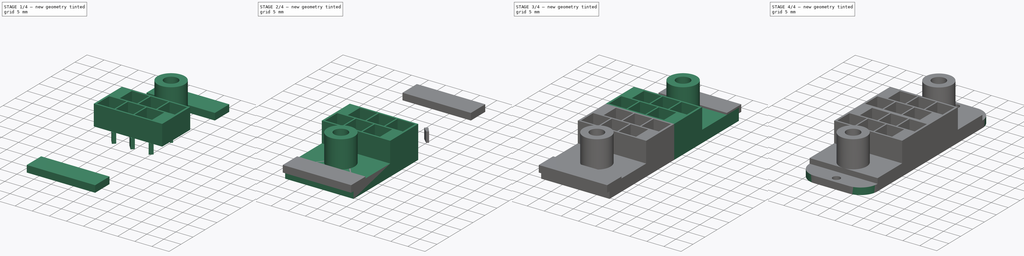
[diagram: build sequence overview — one tinted view per stage of 4, left to right]
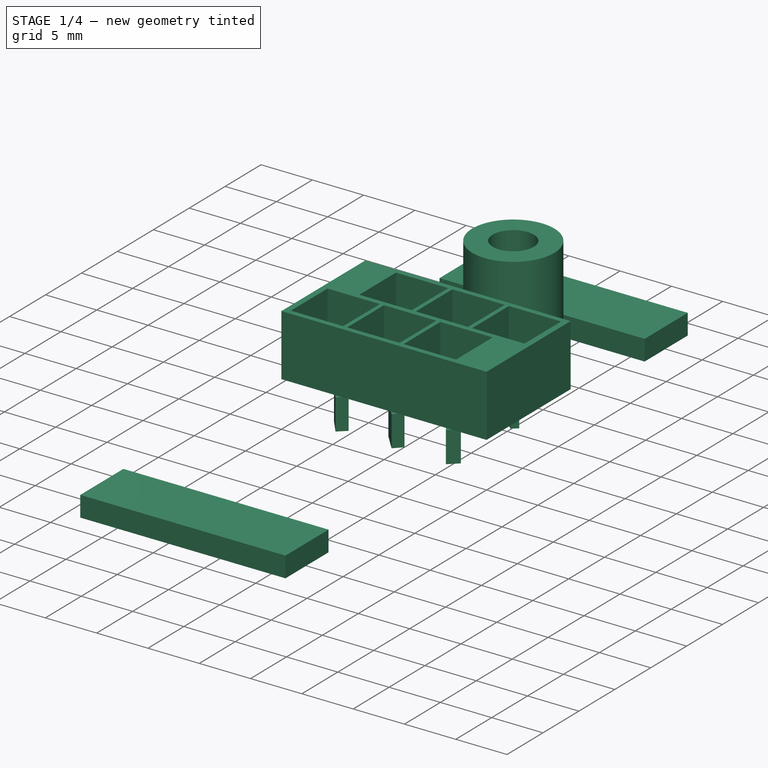
[diagram: stage 1 of 4 — iso view after this stage's code; geometry added in this stage tinted green]
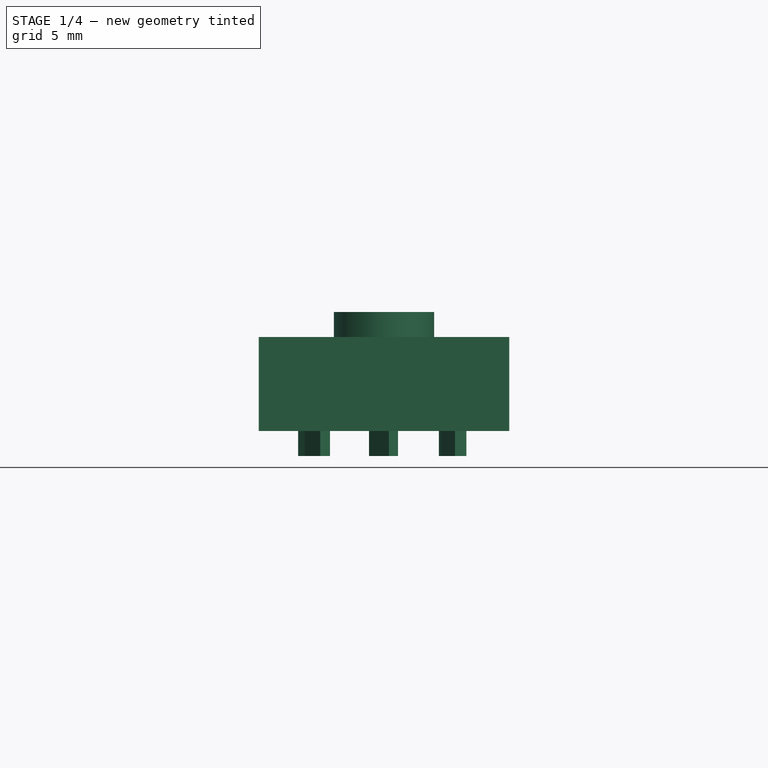
[diagram: stage 1 of 4 — front view after this stage's code; geometry added in this stage tinted green]
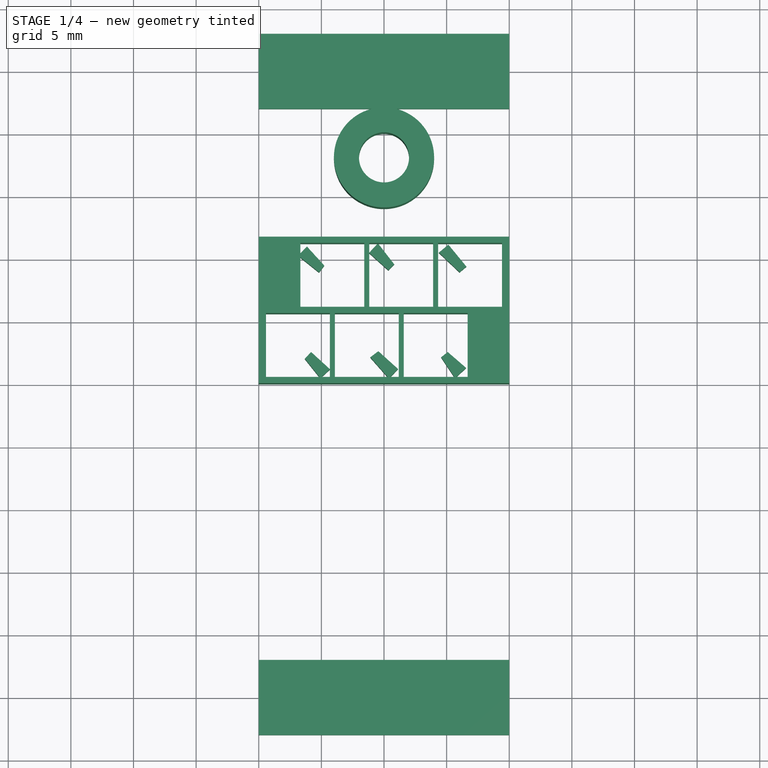
[diagram: stage 1 of 4 — top view after this stage's code; geometry added in this stage tinted green]
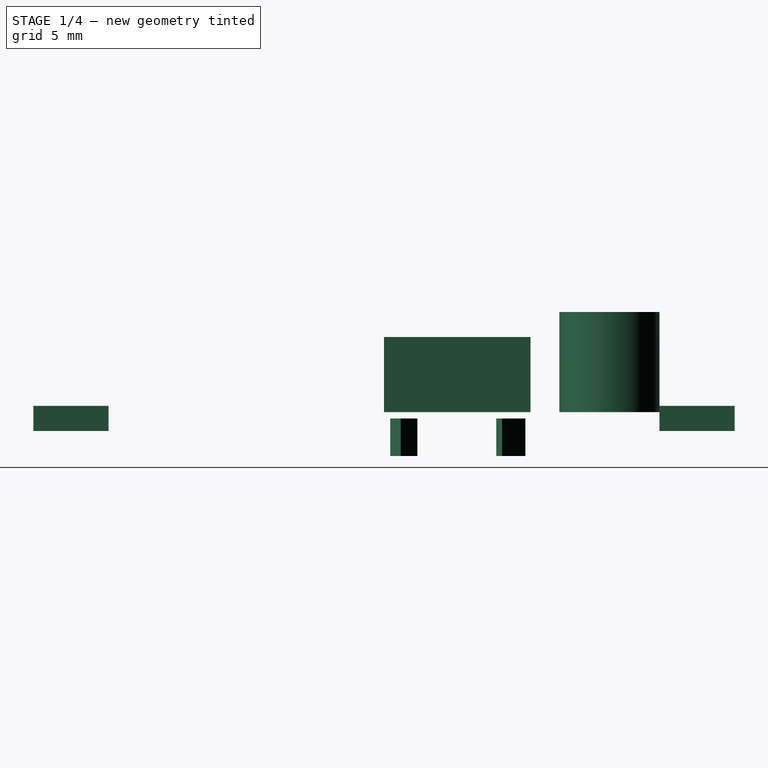
[diagram: stage 1 of 4 — right view after this stage's code; geometry added in this stage tinted green]
FCSTD DOCUMENT  (FreeCAD 0.16R6706 (Git))
Label: MotorHolder_1.2
License: All rights reserved
LicenseURL: http://en.wikipedia.org/wiki/All_rights_reserved
objects: Sketcher::SketchObject×9, PartDesign::Pad×9, Part::MultiFuse×3, PartDesign::Fillet×1, Part::Cut×1
note: 32 computed .brp shape members not serialized (recipe doc carries the construction recipe); baked Part::Feature solids carry a one-line shape summary decoded from their .brp

FEATURE [PartDesign::Pad] Pad010
  Length = 6
  Length2 = 100
  Placement = pos=(0,0,3.5) rot=(0,0,1;0rad)
  Sketch = -> Sketch010
  Type = 0
FEATURE [Sketcher::SketchObject] Sketch011
  Placement = pos=(0,0,3.5) rot=(0,0,1;0rad)
  sketch-geometry (2):
    g0: Circle CenterX=10 CenterY=18 CenterZ=0 NormalX=0 NormalY=0 NormalZ=1 Radius=2
    g1: Circle CenterX=10 CenterY=18 CenterZ=0 NormalX=0 NormalY=0 NormalZ=1 Radius=4
  constraints (5):
    c: Radius(g0) = 2
    c: Coincident(g1,g0)
    c: Radius(g1) = 4
    c: DistanceX(g-1,g0) = 10
    c: DistanceY(g-1,g0) = 18
FEATURE [PartDesign::Pad] Pad011
  Length = 8
  Length2 = 100
  Placement = pos=(0,0,3.5) rot=(0,0,1;0rad)
  Sketch = -> Sketch011
  Type = 0
FEATURE [Sketcher::SketchObject] Sketch012
  sketch-geometry (24):
    g0: LineSegment StartX=3.14451 StartY=10.2964 StartZ=0 EndX=4.81223 EndY=8.96219 EndZ=0
    g1: LineSegment StartX=4.81223 StartY=8.96219 StartZ=0 EndX=5.22976 EndY=9.5068 EndZ=0
    g2: LineSegment StartX=5.22976 StartY=9.5068 StartZ=0 EndX=3.84864 EndY=11.0276 EndZ=0
    g3: LineSegment StartX=3.84864 StartY=11.0276 StartZ=0 EndX=3.14451 EndY=10.2964 EndZ=0
    g4: LineSegment StartX=8.80602 StartY=10.5234 StartZ=0 EndX=10.3483 EndY=9.13186 EndZ=0
    g5: LineSegment StartX=10.3483 StartY=9.13186 StartZ=0 EndX=10.8168 EndY=9.6104 EndZ=0
    g6: LineSegment StartX=10.8168 StartY=9.6104 StartZ=0 EndX=9.51401 EndY=11.2859 EndZ=0
    g7: LineSegment StartX=9.51401 StartY=11.2859 StartZ=0 EndX=8.80602 EndY=10.5234 EndZ=0
    g8: LineSegment StartX=14.3792 StartY=10.5416 StartZ=0 EndX=16.0312 EndY=8.98035 EndZ=0
    g9: LineSegment StartX=16.0312 StartY=8.98035 StartZ=0 EndX=16.5758 EndY=9.43419 EndZ=0
    g10: LineSegment StartX=16.5758 StartY=9.43419 StartZ=0 EndX=15.1416 EndY=11.1769 EndZ=0
    g11: LineSegment StartX=15.1416 StartY=11.1769 StartZ=0 EndX=14.3792 EndY=10.5416 EndZ=0
    g12: LineSegment StartX=3.6714 StartY=2.07084 StartZ=0 EndX=4.91308 EndY=0.518744 EndZ=0
    g13: LineSegment StartX=4.91308 StartY=0.518744 StartZ=0 EndX=5.68913 EndY=1.22828 EndZ=0
    g14: LineSegment StartX=5.68913 StartY=1.22828 StartZ=0 EndX=4.18138 EndY=2.60299 EndZ=0
    g15: LineSegment StartX=4.18138 StartY=2.60299 StartZ=0 EndX=3.6714 EndY=2.07084 EndZ=0
    g16: LineSegment StartX=8.9042 StartY=2.18171 StartZ=0 EndX=10.3898 EndY=0.496571 EndZ=0
    g17: LineSegment StartX=10.3898 StartY=0.496571 StartZ=0 EndX=11.1215 EndY=1.25045 EndZ=0
    g18: LineSegment StartX=11.1215 StartY=1.25045 StartZ=0 EndX=9.54721 EndY=2.66951 EndZ=0
    g19: LineSegment StartX=9.54721 StartY=2.66951 StartZ=0 EndX=8.9042 EndY=2.18171 EndZ=0
    g20: LineSegment StartX=14.5583 StartY=2.18171 StartZ=0 EndX=15.6669 EndY=0.518744 EndZ=0
    g21: LineSegment StartX=15.6669 StartY=0.518744 StartZ=0 EndX=16.5538 EndY=1.33914 EndZ=0
    g22: LineSegment StartX=16.5538 StartY=1.33914 StartZ=0 EndX=15.0904 EndY=2.60299 EndZ=0
    g23: LineSegment StartX=15.0904 StartY=2.60299 StartZ=0 EndX=14.5583 EndY=2.18171 EndZ=0
  constraints (24):
    c: Coincident(g0,g1)
    c: Coincident(g1,g2)
    c: Coincident(g2,g3)
    c: Coincident(g3,g0)
    c: Coincident(g4,g5)
    c: Coincident(g5,g6)
    c: Coincident(g6,g7)
    c: Coincident(g7,g4)
    c: Coincident(g8,g9)
    c: Coincident(g9,g10)
    c: Coincident(g10,g11)
    c: Coincident(g11,g8)
    c: Coincident(g12,g13)
    c: Coincident(g13,g14)
    c: Coincident(g14,g15)
    c: Coincident(g15,g12)
    c: Coincident(g16,g17)
    c: Coincident(g17,g18)
    c: Coincident(g18,g19)
    c: Coincident(g19,g16)
    c: Coincident(g20,g21)
    c: Coincident(g21,g22)
    c: Coincident(g22,g23)
    c: Coincident(g23,g20)
FEATURE [PartDesign::Pad] Pad012
  Length = 3
  Length2 = 100
  Sketch = -> Sketch012
  Type = 0
FEATURE [Sketcher::SketchObject] Sketch013
  Placement = pos=(0,0,2) rot=(0,0,1;0rad)
  sketch-geometry (8):
    g0: LineSegment StartX=0 StartY=28 StartZ=0 EndX=20 EndY=28 EndZ=0
    g1: LineSegment StartX=20 StartY=28 StartZ=0 EndX=20 EndY=22 EndZ=0
    g2: LineSegment StartX=20 StartY=22 StartZ=0 EndX=0 EndY=22 EndZ=0
    g3: LineSegment StartX=0 StartY=22 StartZ=0 EndX=0 EndY=28 EndZ=0
    g4: LineSegment StartX=0 StartY=-22 StartZ=0 EndX=20 EndY=-22 EndZ=0
    g5: LineSegment StartX=20 StartY=-22 StartZ=0 EndX=20 EndY=-28 EndZ=0
    g6: LineSegment StartX=20 StartY=-28 StartZ=0 EndX=0 EndY=-28 EndZ=0
    g7: LineSegment StartX=0 StartY=-28 StartZ=0 EndX=0 EndY=-22 EndZ=0
  constraints (24):
    c: Coincident(g0,g1)
    c: Coincident(g1,g2)
    c: Coincident(g2,g3)
    c: Coincident(g3,g0)
    c: Horizontal(g0)
    c: Horizontal(g2)
    c: Vertical(g1)
    c: Vertical(g3)
    c: Coincident(g4,g5)
    c: Coincident(g5,g6)
    c: Coincident(g6,g7)
    c: Coincident(g7,g4)
    c: Horizontal(g4)
    c: Horizontal(g6)
    c: Vertical(g5)
    c: Vertical(g7)
    c: DistanceX(g4,g4) = 20
    c: DistanceY(g6,g4) = 6
    c: DistanceY(g4,g-1) = 22
    c: DistanceX(g-1,g4) = 0
    c: DistanceX(g0,g0) = 20
    c: DistanceY(g2,g0) = 6
    c: DistanceY(g-1,g2) = 22
    c: DistanceX(g-1,g2) = 0
FEATURE [PartDesign::Pad] Pad013
  Length = 2
  Length2 = 100
  Placement = pos=(0,0,2) rot=(0,0,1;0rad)
  Sketch = -> Sketch013
  Type = 0
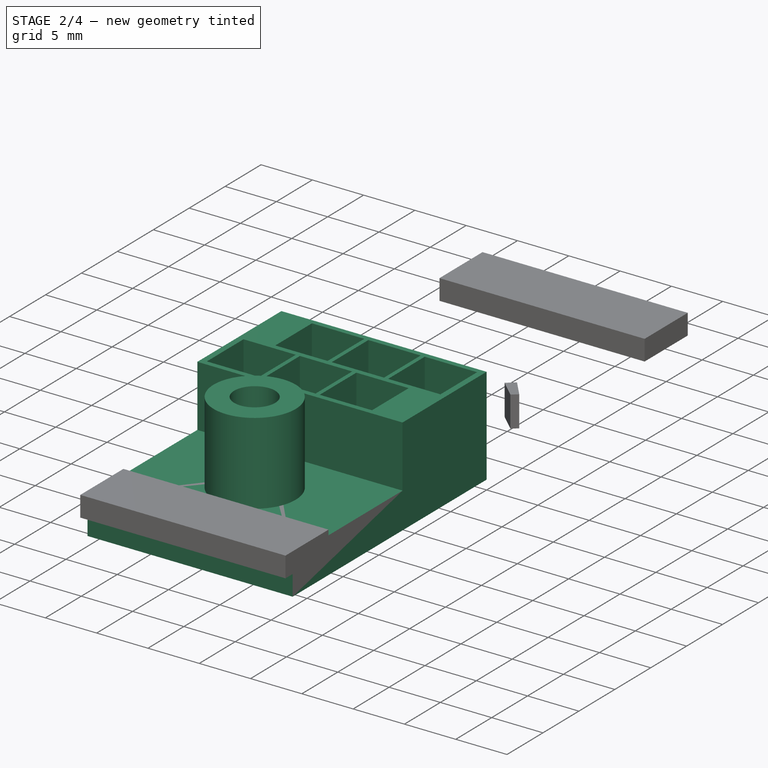
[diagram: stage 2 of 4 — iso view after this stage's code; geometry added in this stage tinted green]
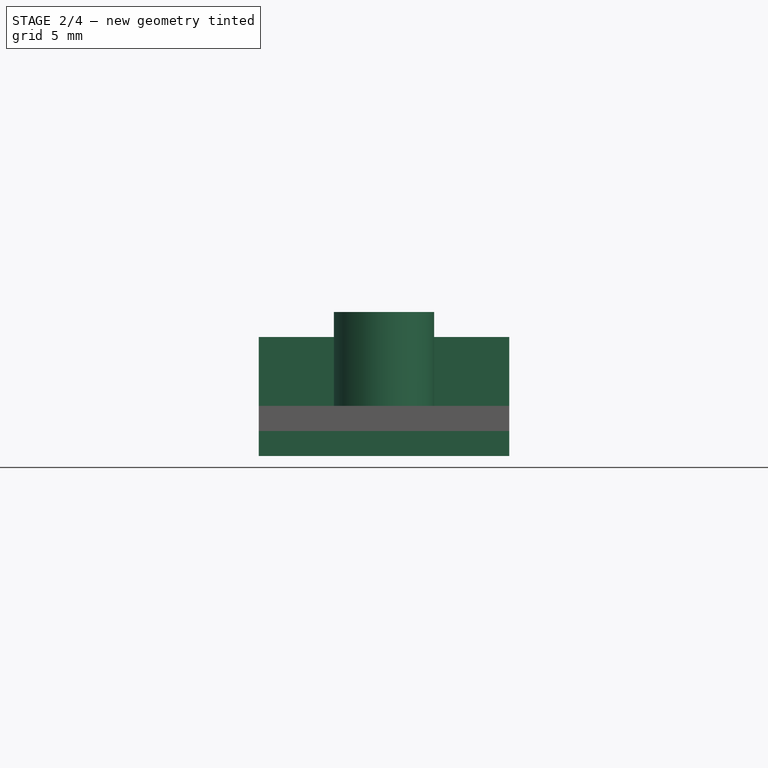
[diagram: stage 2 of 4 — front view after this stage's code; geometry added in this stage tinted green]
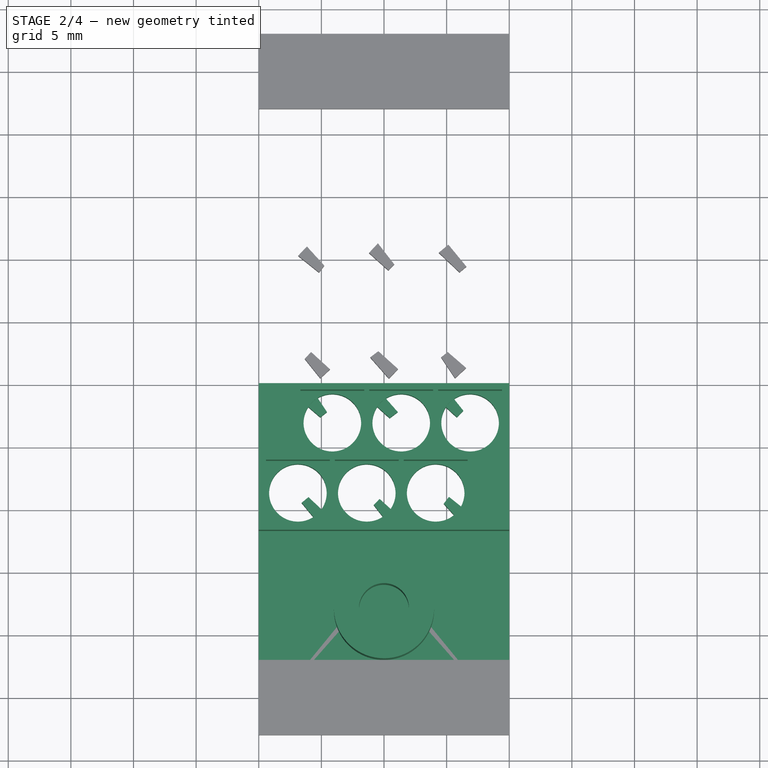
[diagram: stage 2 of 4 — top view after this stage's code; geometry added in this stage tinted green]
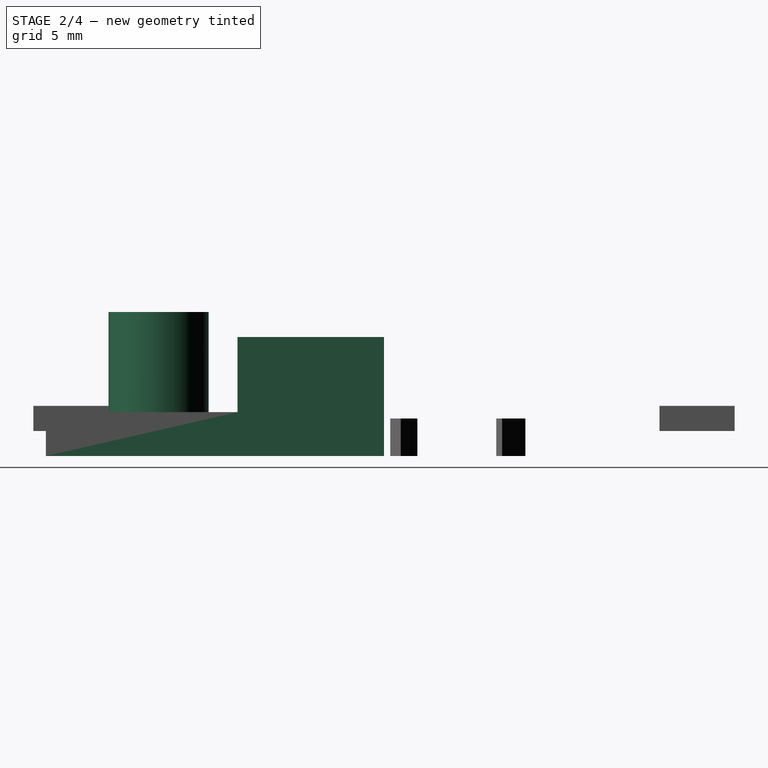
[diagram: stage 2 of 4 — right view after this stage's code; geometry added in this stage tinted green]
FEATURE [Sketcher::SketchObject] Sketch003
  sketch-geometry (24):
    g0: LineSegment StartX=3.14451 StartY=10.2964 StartZ=0 EndX=4.81223 EndY=8.96219 EndZ=0
    g1: LineSegment StartX=4.81223 StartY=8.96219 StartZ=0 EndX=5.22976 EndY=9.5068 EndZ=0
    g2: LineSegment StartX=5.22976 StartY=9.5068 StartZ=0 EndX=3.84864 EndY=11.0276 EndZ=0
    g3: LineSegment StartX=3.84864 StartY=11.0276 StartZ=0 EndX=3.14451 EndY=10.2964 EndZ=0
    g4: LineSegment StartX=8.80602 StartY=10.5234 StartZ=0 EndX=10.3483 EndY=9.13186 EndZ=0
    g5: LineSegment StartX=10.3483 StartY=9.13186 StartZ=0 EndX=10.8168 EndY=9.6104 EndZ=0
    g6: LineSegment StartX=10.8168 StartY=9.6104 StartZ=0 EndX=9.51401 EndY=11.2859 EndZ=0
    g7: LineSegment StartX=9.51401 StartY=11.2859 StartZ=0 EndX=8.80602 EndY=10.5234 EndZ=0
    g8: LineSegment StartX=14.3792 StartY=10.5416 StartZ=0 EndX=16.0312 EndY=8.98035 EndZ=0
    g9: LineSegment StartX=16.0312 StartY=8.98035 StartZ=0 EndX=16.5758 EndY=9.43419 EndZ=0
    g10: LineSegment StartX=16.5758 StartY=9.43419 StartZ=0 EndX=15.1416 EndY=11.1769 EndZ=0
    g11: LineSegment StartX=15.1416 StartY=11.1769 StartZ=0 EndX=14.3792 EndY=10.5416 EndZ=0
    g12: LineSegment StartX=3.6714 StartY=2.07084 StartZ=0 EndX=4.91308 EndY=0.518744 EndZ=0
    g13: LineSegment StartX=4.91308 StartY=0.518744 StartZ=0 EndX=5.68913 EndY=1.22828 EndZ=0
    g14: LineSegment StartX=5.68913 StartY=1.22828 StartZ=0 EndX=4.18138 EndY=2.60299 EndZ=0
    g15: LineSegment StartX=4.18138 StartY=2.60299 StartZ=0 EndX=3.6714 EndY=2.07084 EndZ=0
    g16: LineSegment StartX=8.9042 StartY=2.18171 StartZ=0 EndX=10.3898 EndY=0.496571 EndZ=0
    g17: LineSegment StartX=10.3898 StartY=0.496571 StartZ=0 EndX=11.1215 EndY=1.25045 EndZ=0
    g18: LineSegment StartX=11.1215 StartY=1.25045 StartZ=0 EndX=9.54721 EndY=2.66951 EndZ=0
    g19: LineSegment StartX=9.54721 StartY=2.66951 StartZ=0 EndX=8.9042 EndY=2.18171 EndZ=0
    g20: LineSegment StartX=14.5583 StartY=2.18171 StartZ=0 EndX=15.6669 EndY=0.518744 EndZ=0
    g21: LineSegment StartX=15.6669 StartY=0.518744 StartZ=0 EndX=16.5538 EndY=1.33914 EndZ=0
    g22: LineSegment StartX=16.5538 StartY=1.33914 StartZ=0 EndX=15.0904 EndY=2.60299 EndZ=0
    g23: LineSegment StartX=15.0904 StartY=2.60299 StartZ=0 EndX=14.5583 EndY=2.18171 EndZ=0
  constraints (24):
    c: Coincident(g0,g1)
    c: Coincident(g1,g2)
    c: Coincident(g2,g3)
    c: Coincident(g3,g0)
    c: Coincident(g4,g5)
    c: Coincident(g5,g6)
    c: Coincident(g6,g7)
    c: Coincident(g7,g4)
    c: Coincident(g8,g9)
    c: Coincident(g9,g10)
    c: Coincident(g10,g11)
    c: Coincident(g11,g8)
    c: Coincident(g12,g13)
    c: Coincident(g13,g14)
    c: Coincident(g14,g15)
    c: Coincident(g15,g12)
    c: Coincident(g16,g17)
    c: Coincident(g17,g18)
    c: Coincident(g18,g19)
    c: Coincident(g19,g16)
    c: Coincident(g20,g21)
    c: Coincident(g21,g22)
    c: Coincident(g22,g23)
    c: Coincident(g23,g20)
FEATURE [PartDesign::Pad] Pad003
  Length = 3
  Length2 = 100
  Sketch = -> Sketch003
  Type = 0
FEATURE [Sketcher::SketchObject] Sketch009
  sketch-geometry (11):
    g0: LineSegment StartX=0 StartY=0 StartZ=0 EndX=20 EndY=0 EndZ=0
    g1: LineSegment StartX=20 StartY=0 StartZ=0 EndX=20 EndY=27 EndZ=0
    g2: LineSegment StartX=20 StartY=27 StartZ=0 EndX=0 EndY=27 EndZ=0
    g3: LineSegment StartX=0 StartY=27 StartZ=0 EndX=0 EndY=0 EndZ=0
    g4: Circle CenterX=5.875 CenterY=8.65 CenterZ=0 NormalX=0 NormalY=0 NormalZ=1 Radius=2.3
    g5: Circle CenterX=11.375 CenterY=8.65 CenterZ=0 NormalX=0 NormalY=0 NormalZ=1 Radius=2.3
    g6: Circle CenterX=16.875 CenterY=8.65 CenterZ=0 NormalX=0 NormalY=0 NormalZ=1 Radius=2.3
    g7: Circle CenterX=14.125 CenterY=3.05 CenterZ=0 NormalX=0 NormalY=0 NormalZ=1 Radius=2.3
    g8: Circle CenterX=8.625 CenterY=3.05 CenterZ=0 NormalX=0 NormalY=0 NormalZ=1 Radius=2.3
    g9: Circle CenterX=3.125 CenterY=3.05 CenterZ=0 NormalX=0 NormalY=0 NormalZ=1 Radius=2.3
    g10: Circle CenterX=10 CenterY=25 CenterZ=0 NormalX=0 NormalY=0 NormalZ=1 Radius=1.1
  constraints (31):
    c: Coincident(g0,g1)
    c: Coincident(g1,g2)
    c: Coincident(g2,g3)
    c: Coincident(g3,g0)
    c: Horizontal(g0)
    c: Horizontal(g2)
    c: Vertical(g1)
    c: Vertical(g3)
    c: Coincident(g0,g-1)
    c: DistanceX(g2,g1) = 20
    c: DistanceY(g0,g1) = 27
    c: Radius(g9) = 2.3
    c: Radius(g8) = 2.3
    c: Radius(g7) = 2.3
    c: Radius(g6) = 2.3
    c: Radius(g5) = 2.3
    c: Radius(g4) = 2.3
    c: DistanceY(g-1,g4) = 8.65
    c: DistanceY(g-1,g5) = 8.65
    c: DistanceY(g-1,g6) = 8.65
    c: DistanceY(g-1,g9) = 3.05
    c: DistanceX(g-1,g9) = 3.125
    c: DistanceY(g-1,g8) = 3.05
    c: DistanceY(g-1,g7) = 3.05
    c: DistanceX(g9,g8) = 5.5
    c: DistanceX(g8,g7) = 5.5
    c: DistanceX(g5,g6) = 5.5
    c: DistanceX(g4,g5) = 5.5
    c: Radius(g10) = 1.1
    c: DistanceX(g-1,g10) = 10
    c: DistanceX(g9,g4) = 2.75
FEATURE [Sketcher::SketchObject] Sketch010
  Placement = pos=(0,0,3.5) rot=(0,0,1;0rad)
  sketch-geometry (28):
    g0: LineSegment StartX=0 StartY=0 StartZ=0 EndX=20 EndY=0 EndZ=0
    g1: LineSegment StartX=20 StartY=0 StartZ=0 EndX=20 EndY=11.7 EndZ=0
    g2: LineSegment StartX=20 StartY=11.7 StartZ=0 EndX=0 EndY=11.7 EndZ=0
    g3: LineSegment StartX=0 StartY=11.7 StartZ=0 EndX=0 EndY=0 EndZ=0
    g4: LineSegment StartX=3.325 StartY=11.2 StartZ=0 EndX=8.425 EndY=11.2 EndZ=0
    g5: LineSegment StartX=8.425 StartY=11.2 StartZ=0 EndX=8.425 EndY=6.1 EndZ=0
    g6: LineSegment StartX=8.425 StartY=6.1 StartZ=0 EndX=3.325 EndY=6.1 EndZ=0
    g7: LineSegment StartX=3.325 StartY=6.1 StartZ=0 EndX=3.325 EndY=11.2 EndZ=0
    g8: LineSegment StartX=8.825 StartY=11.2 StartZ=0 EndX=13.925 EndY=11.2 EndZ=0
    g9: LineSegment StartX=13.925 StartY=11.2 StartZ=0 EndX=13.925 EndY=6.1 EndZ=0
    g10: LineSegment StartX=13.925 StartY=6.1 StartZ=0 EndX=8.825 EndY=6.1 EndZ=0
    g11: LineSegment StartX=8.825 StartY=6.1 StartZ=0 EndX=8.825 EndY=11.2 EndZ=0
    g12: LineSegment StartX=14.325 StartY=11.2 StartZ=0 EndX=19.425 EndY=11.2 EndZ=0
    g13: LineSegment StartX=19.425 StartY=11.2 StartZ=0 EndX=19.425 EndY=6.1 EndZ=0
    g14: LineSegment StartX=19.425 StartY=6.1 StartZ=0 EndX=14.325 EndY=6.1 EndZ=0
    g15: LineSegment StartX=14.325 StartY=6.1 StartZ=0 EndX=14.325 EndY=11.2 EndZ=0
    g16: LineSegment StartX=5.675 StartY=5.6 StartZ=0 EndX=0.575 EndY=5.6 EndZ=0
    g17: LineSegment StartX=0.575 StartY=5.6 StartZ=0 EndX=0.575 EndY=0.5 EndZ=0
    g18: LineSegment StartX=0.575 StartY=0.5 StartZ=0 EndX=5.675 EndY=0.5 EndZ=0
    g19: LineSegment StartX=5.675 StartY=0.5 StartZ=0 EndX=5.675 EndY=5.6 EndZ=0
    g20: LineSegment StartX=6.075 StartY=5.6 StartZ=0 EndX=11.175 EndY=5.6 EndZ=0
    g21: LineSegment StartX=11.175 StartY=5.6 StartZ=0 EndX=11.175 EndY=0.5 EndZ=0
    g22: LineSegment StartX=11.175 StartY=0.5 StartZ=0 EndX=6.075 EndY=0.5 EndZ=0
    g23: LineSegment StartX=6.075 StartY=0.5 StartZ=0 EndX=6.075 EndY=5.6 EndZ=0
    g24: LineSegment StartX=11.575 StartY=5.6 StartZ=0 EndX=16.675 EndY=5.6 EndZ=0
    g25: LineSegment StartX=16.675 StartY=5.6 StartZ=0 EndX=16.675 EndY=0.5 EndZ=0
    g26: LineSegment StartX=16.675 StartY=0.5 StartZ=0 EndX=11.575 EndY=0.5 EndZ=0
    g27: LineSegment StartX=11.575 StartY=0.5 StartZ=0 EndX=11.575 EndY=5.6 EndZ=0
  constraints (83):
    c: Coincident(g0,g1)
    c: Coincident(g1,g2)
    c: Coincident(g2,g3)
    c: Coincident(g3,g0)
    c: Horizontal(g0)
    c: Horizontal(g2)
    c: Vertical(g1)
    c: Vertical(g3)
    c: Coincident(g0,g-1)
    c: DistanceX(g2,g1) = 20
    c: DistanceY(g0,g1) = 11.7
    c: Coincident(g4,g5)
    c: Coincident(g5,g6)
    c: Coincident(g6,g7)
    c: Coincident(g7,g4)
    c: Horizontal(g4)
    c: Horizontal(g6)
    c: Vertical(g5)
    c: Vertical(g7)
    c: Coincident(g8,g9)
    c: Coincident(g9,g10)
    c: Coincident(g10,g11)
    c: Coincident(g11,g8)
    c: Horizontal(g8)
    c: Horizontal(g10)
    c: Vertical(g9)
    c: Vertical(g11)
    c: Coincident(g12,g13)
    c: Coincident(g13,g14)
    c: Coincident(g14,g15)
    c: Coincident(g15,g12)
    c: Horizontal(g12)
    c: Horizontal(g14)
    c: Vertical(g13)
    c: Vertical(g15)
    c: Coincident(g16,g17)
    c: Coincident(g17,g18)
    c: Coincident(g18,g19)
    c: Coincident(g19,g16)
    c: Horizontal(g16)
    c: Horizontal(g18)
    c: Vertical(g17)
    c: Vertical(g19)
    c: Coincident(g20,g21)
    c: Coincident(g21,g22)
    c: Coincident(g22,g23)
    c: Coincident(g23,g20)
    c: Horizontal(g20)
    c: Horizontal(g22)
    c: Vertical(g21)
    c: Vertical(g23)
    c: Coincident(g24,g25)
    c: Coincident(g25,g26)
    c: Coincident(g26,g27)
    c: Coincident(g27,g24)
    c: Horizontal(g24)
    c: Horizontal(g26)
    c: Vertical(g25)
    c: Vertical(g27)
    c: DistanceX(g6,g5) = 5.1
    c: DistanceX(g8,g8) = 5.1
    c: DistanceY(g10,g8) = 5.1
    c: DistanceY(g6,g4) = 5.1
    c: DistanceX(g12,g12) = 5.1
    c: DistanceY(g13,g12) = 5.1
    c: DistanceY(g26,g24) = 5.1
    c: DistanceX(g24,g24) = 5.1
    c: DistanceX(g20,g20) = 5.1
    c: DistanceY(g22,g20) = 5.1
    c: DistanceX(g16,g16) = 5.1
    c: DistanceY(g17,g16) = 5.1
    c: DistanceY(g20,g16) = 0
    c: DistanceY(g24,g20) = 0
    c: DistanceY(g8,g4) = 0
    c: DistanceY(g12,g8) = 0
    c: DistanceY(g16,g6) = 0.5
    c: DistanceY(g-1,g17) = 0.5
    c: DistanceX(g16,g20) = 0.4
    c: DistanceX(g20,g24) = 0.4
    c: DistanceX(g4,g8) = 0.4
    c: DistanceX(g8,g12) = 0.4
    c: DistanceX(g16,g6) = 2.75
    c: DistanceX(g-1,g17) = 0.575
FEATURE [PartDesign::Pad] Pad009
  Length = 3.5
  Length2 = 100
  Sketch = -> Sketch009
  Type = 0
FEATURE [Part::MultiFuse] Fusion001
  Placement = pos=(20,0,0) rot=(0,0,1;3.14159rad)
  Shapes = -> [Pad012,Pad009,Pad010,Pad011]
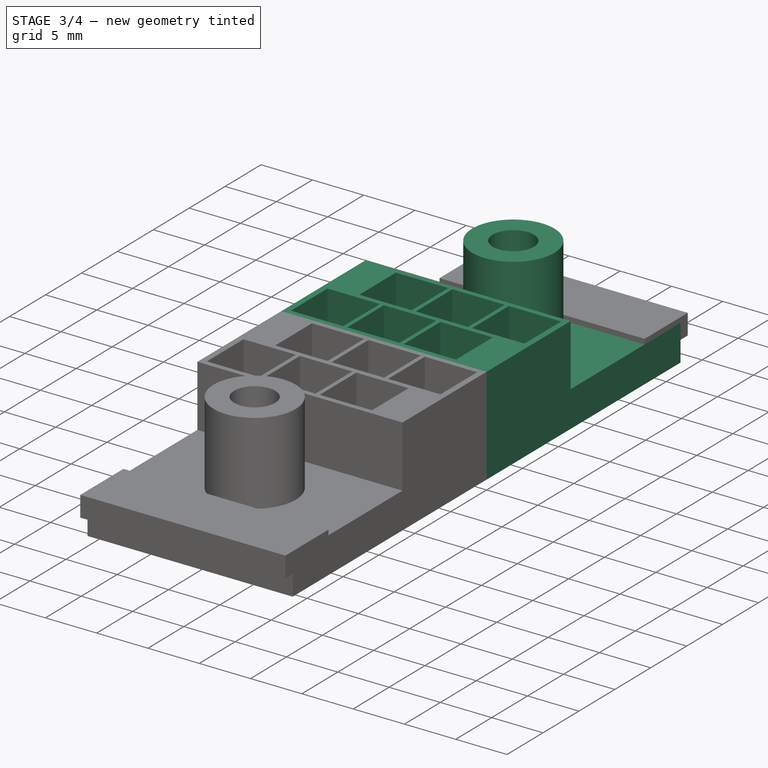
[diagram: stage 3 of 4 — iso view after this stage's code; geometry added in this stage tinted green]
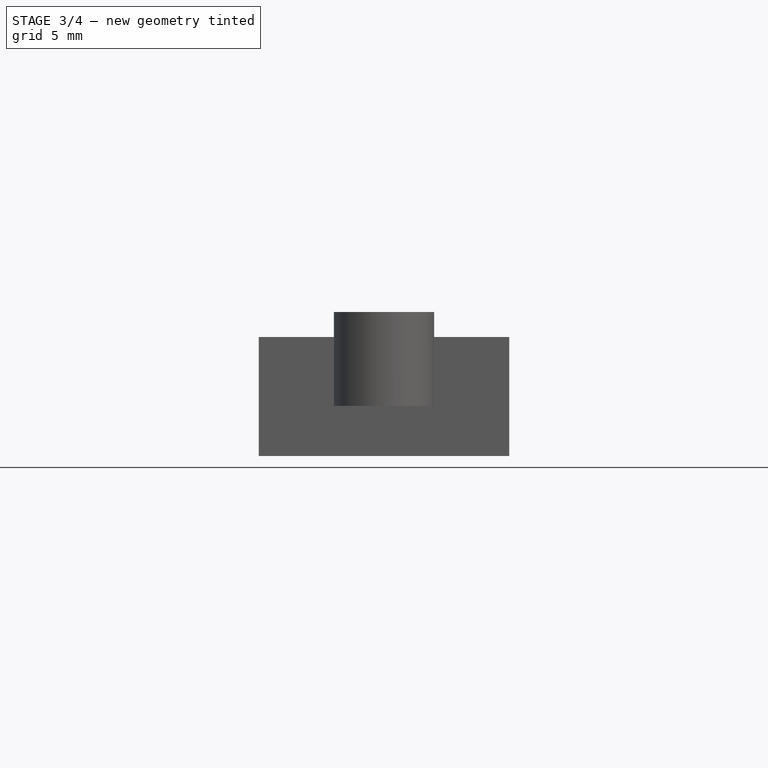
[diagram: stage 3 of 4 — front view after this stage's code; geometry added in this stage tinted green]
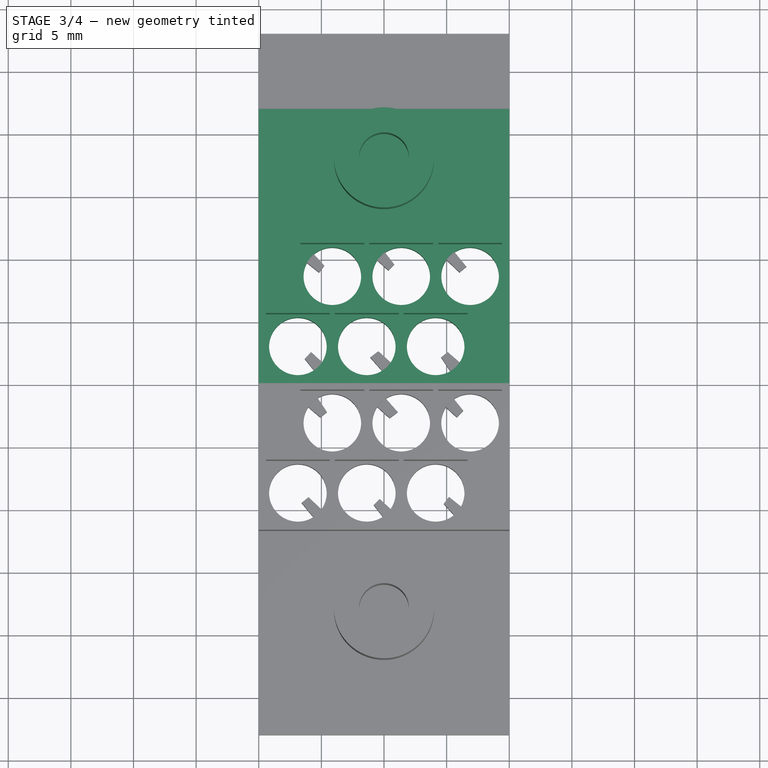
[diagram: stage 3 of 4 — top view after this stage's code; geometry added in this stage tinted green]
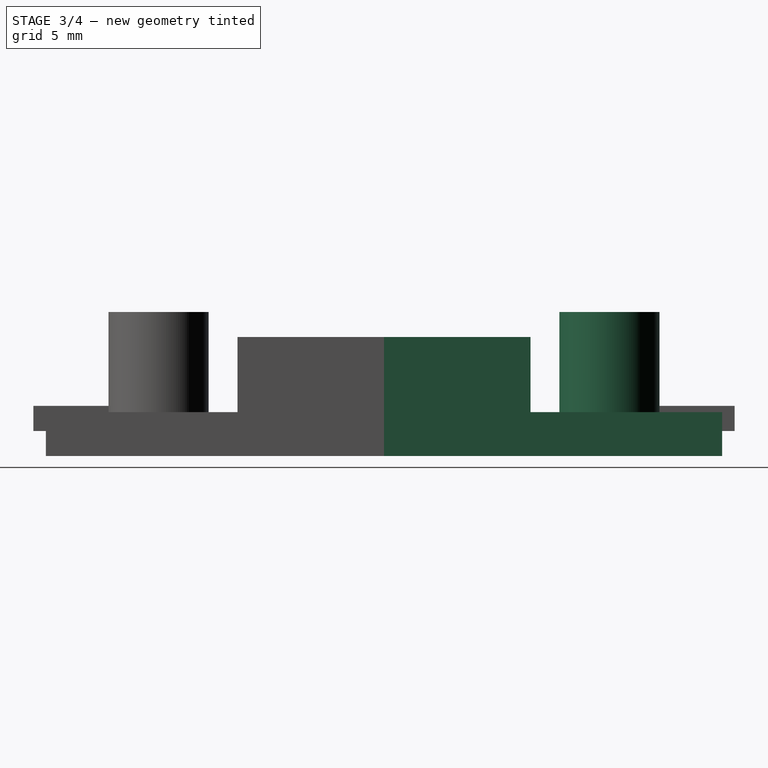
[diagram: stage 3 of 4 — right view after this stage's code; geometry added in this stage tinted green]
FEATURE [Sketcher::SketchObject] Sketch
  sketch-geometry (11):
    g0: LineSegment StartX=0 StartY=0 StartZ=0 EndX=20 EndY=0 EndZ=0
    g1: LineSegment StartX=20 StartY=0 StartZ=0 EndX=20 EndY=27 EndZ=0
    g2: LineSegment StartX=20 StartY=27 StartZ=0 EndX=0 EndY=27 EndZ=0
    g3: LineSegment StartX=0 StartY=27 StartZ=0 EndX=0 EndY=0 EndZ=0
    g4: Circle CenterX=5.875 CenterY=8.65 CenterZ=0 NormalX=0 NormalY=0 NormalZ=1 Radius=2.3
    g5: Circle CenterX=11.375 CenterY=8.65 CenterZ=0 NormalX=0 NormalY=0 NormalZ=1 Radius=2.3
    g6: Circle CenterX=16.875 CenterY=8.65 CenterZ=0 NormalX=0 NormalY=0 NormalZ=1 Radius=2.3
    g7: Circle CenterX=14.125 CenterY=3.05 CenterZ=0 NormalX=0 NormalY=0 NormalZ=1 Radius=2.3
    g8: Circle CenterX=8.625 CenterY=3.05 CenterZ=0 NormalX=0 NormalY=0 NormalZ=1 Radius=2.3
    g9: Circle CenterX=3.125 CenterY=3.05 CenterZ=0 NormalX=0 NormalY=0 NormalZ=1 Radius=2.3
    g10: Circle CenterX=10 CenterY=25 CenterZ=0 NormalX=0 NormalY=0 NormalZ=1 Radius=1.1
  constraints (31):
    c: Coincident(g0,g1)
    c: Coincident(g1,g2)
    c: Coincident(g2,g3)
    c: Coincident(g3,g0)
    c: Horizontal(g0)
    c: Horizontal(g2)
    c: Vertical(g1)
    c: Vertical(g3)
    c: Coincident(g0,g-1)
    c: DistanceX(g2,g1) = 20
    c: DistanceY(g0,g1) = 27
    c: Radius(g9) = 2.3
    c: Radius(g8) = 2.3
    c: Radius(g7) = 2.3
    c: Radius(g6) = 2.3
    c: Radius(g5) = 2.3
    c: Radius(g4) = 2.3
    c: DistanceY(g-1,g4) = 8.65
    c: DistanceY(g-1,g5) = 8.65
    c: DistanceY(g-1,g6) = 8.65
    c: DistanceY(g-1,g9) = 3.05
    c: DistanceX(g-1,g9) = 3.125
    c: DistanceY(g-1,g8) = 3.05
    c: DistanceY(g-1,g7) = 3.05
    c: DistanceX(g9,g8) = 5.5
    c: DistanceX(g8,g7) = 5.5
    c: DistanceX(g5,g6) = 5.5
    c: DistanceX(g4,g5) = 5.5
    c: Radius(g10) = 1.1
    c: DistanceX(g-1,g10) = 10
    c: DistanceX(g9,g4) = 2.75
FEATURE [Sketcher::SketchObject] Sketch001
  Placement = pos=(0,0,3.5) rot=(0,0,1;0rad)
  sketch-geometry (28):
    g0: LineSegment StartX=0 StartY=0 StartZ=0 EndX=20 EndY=0 EndZ=0
    g1: LineSegment StartX=20 StartY=0 StartZ=0 EndX=20 EndY=11.7 EndZ=0
    g2: LineSegment StartX=20 StartY=11.7 StartZ=0 EndX=0 EndY=11.7 EndZ=0
    g3: LineSegment StartX=0 StartY=11.7 StartZ=0 EndX=0 EndY=0 EndZ=0
    g4: LineSegment StartX=3.325 StartY=11.2 StartZ=0 EndX=8.425 EndY=11.2 EndZ=0
    g5: LineSegment StartX=8.425 StartY=11.2 StartZ=0 EndX=8.425 EndY=6.1 EndZ=0
    g6: LineSegment StartX=8.425 StartY=6.1 StartZ=0 EndX=3.325 EndY=6.1 EndZ=0
    g7: LineSegment StartX=3.325 StartY=6.1 StartZ=0 EndX=3.325 EndY=11.2 EndZ=0
    g8: LineSegment StartX=8.825 StartY=11.2 StartZ=0 EndX=13.925 EndY=11.2 EndZ=0
    g9: LineSegment StartX=13.925 StartY=11.2 StartZ=0 EndX=13.925 EndY=6.1 EndZ=0
    g10: LineSegment StartX=13.925 StartY=6.1 StartZ=0 EndX=8.825 EndY=6.1 EndZ=0
    g11: LineSegment StartX=8.825 StartY=6.1 StartZ=0 EndX=8.825 EndY=11.2 EndZ=0
    g12: LineSegment StartX=14.325 StartY=11.2 StartZ=0 EndX=19.425 EndY=11.2 EndZ=0
    g13: LineSegment StartX=19.425 StartY=11.2 StartZ=0 EndX=19.425 EndY=6.1 EndZ=0
    g14: LineSegment StartX=19.425 StartY=6.1 StartZ=0 EndX=14.325 EndY=6.1 EndZ=0
    g15: LineSegment StartX=14.325 StartY=6.1 StartZ=0 EndX=14.325 EndY=11.2 EndZ=0
    g16: LineSegment StartX=5.675 StartY=5.6 StartZ=0 EndX=0.575 EndY=5.6 EndZ=0
    g17: LineSegment StartX=0.575 StartY=5.6 StartZ=0 EndX=0.575 EndY=0.5 EndZ=0
    g18: LineSegment StartX=0.575 StartY=0.5 StartZ=0 EndX=5.675 EndY=0.5 EndZ=0
    g19: LineSegment StartX=5.675 StartY=0.5 StartZ=0 EndX=5.675 EndY=5.6 EndZ=0
    g20: LineSegment StartX=6.075 StartY=5.6 StartZ=0 EndX=11.175 EndY=5.6 EndZ=0
    g21: LineSegment StartX=11.175 StartY=5.6 StartZ=0 EndX=11.175 EndY=0.5 EndZ=0
    g22: LineSegment StartX=11.175 StartY=0.5 StartZ=0 EndX=6.075 EndY=0.5 EndZ=0
    g23: LineSegment StartX=6.075 StartY=0.5 StartZ=0 EndX=6.075 EndY=5.6 EndZ=0
    g24: LineSegment StartX=11.575 StartY=5.6 StartZ=0 EndX=16.675 EndY=5.6 EndZ=0
    g25: LineSegment StartX=16.675 StartY=5.6 StartZ=0 EndX=16.675 EndY=0.5 EndZ=0
    g26: LineSegment StartX=16.675 StartY=0.5 StartZ=0 EndX=11.575 EndY=0.5 EndZ=0
    g27: LineSegment StartX=11.575 StartY=0.5 StartZ=0 EndX=11.575 EndY=5.6 EndZ=0
  constraints (83):
    c: Coincident(g0,g1)
    c: Coincident(g1,g2)
    c: Coincident(g2,g3)
    c: Coincident(g3,g0)
    c: Horizontal(g0)
    c: Horizontal(g2)
    c: Vertical(g1)
    c: Vertical(g3)
    c: Coincident(g0,g-1)
    c: DistanceX(g2,g1) = 20
    c: DistanceY(g0,g1) = 11.7
    c: Coincident(g4,g5)
    c: Coincident(g5,g6)
    c: Coincident(g6,g7)
    c: Coincident(g7,g4)
    c: Horizontal(g4)
    c: Horizontal(g6)
    c: Vertical(g5)
    c: Vertical(g7)
    c: Coincident(g8,g9)
    c: Coincident(g9,g10)
    c: Coincident(g10,g11)
    c: Coincident(g11,g8)
    c: Horizontal(g8)
    c: Horizontal(g10)
    c: Vertical(g9)
    c: Vertical(g11)
    c: Coincident(g12,g13)
    c: Coincident(g13,g14)
    c: Coincident(g14,g15)
    c: Coincident(g15,g12)
    c: Horizontal(g12)
    c: Horizontal(g14)
    c: Vertical(g13)
    c: Vertical(g15)
    c: Coincident(g16,g17)
    c: Coincident(g17,g18)
    c: Coincident(g18,g19)
    c: Coincident(g19,g16)
    c: Horizontal(g16)
    c: Horizontal(g18)
    c: Vertical(g17)
    c: Vertical(g19)
    c: Coincident(g20,g21)
    c: Coincident(g21,g22)
    c: Coincident(g22,g23)
    c: Coincident(g23,g20)
    c: Horizontal(g20)
    c: Horizontal(g22)
    c: Vertical(g21)
    c: Vertical(g23)
    c: Coincident(g24,g25)
    c: Coincident(g25,g26)
    c: Coincident(g26,g27)
    c: Coincident(g27,g24)
    c: Horizontal(g24)
    c: Horizontal(g26)
    c: Vertical(g25)
    c: Vertical(g27)
    c: DistanceX(g6,g5) = 5.1
    c: DistanceX(g8,g8) = 5.1
    c: DistanceY(g10,g8) = 5.1
    c: DistanceY(g6,g4) = 5.1
    c: DistanceX(g12,g12) = 5.1
    c: DistanceY(g13,g12) = 5.1
    c: DistanceY(g26,g24) = 5.1
    c: DistanceX(g24,g24) = 5.1
    c: DistanceX(g20,g20) = 5.1
    c: DistanceY(g22,g20) = 5.1
    c: DistanceX(g16,g16) = 5.1
    c: DistanceY(g17,g16) = 5.1
    c: DistanceY(g20,g16) = 0
    c: DistanceY(g24,g20) = 0
    c: DistanceY(g8,g4) = 0
    c: DistanceY(g12,g8) = 0
    c: DistanceY(g16,g6) = 0.5
    c: DistanceY(g-1,g17) = 0.5
    c: DistanceX(g16,g20) = 0.4
    c: DistanceX(g20,g24) = 0.4
    c: DistanceX(g4,g8) = 0.4
    c: DistanceX(g8,g12) = 0.4
    c: DistanceX(g16,g6) = 2.75
    c: DistanceX(g-1,g17) = 0.575
FEATURE [PartDesign::Pad] Pad
  Length = 3.5
  Length2 = 100
  Sketch = -> Sketch
  Type = 0
FEATURE [PartDesign::Pad] Pad001
  Length = 6
  Length2 = 100
  Placement = pos=(0,0,3.5) rot=(0,0,1;0rad)
  Sketch = -> Sketch001
  Type = 0
FEATURE [Sketcher::SketchObject] Sketch002
  Placement = pos=(0,0,3.5) rot=(0,0,1;0rad)
  sketch-geometry (2):
    g0: Circle CenterX=10 CenterY=18 CenterZ=0 NormalX=0 NormalY=0 NormalZ=1 Radius=2
    g1: Circle CenterX=10 CenterY=18 CenterZ=0 NormalX=0 NormalY=0 NormalZ=1 Radius=4
  constraints (5):
    c: Radius(g0) = 2
    c: Coincident(g1,g0)
    c: Radius(g1) = 4
    c: DistanceX(g-1,g0) = 10
    c: DistanceY(g-1,g0) = 18
FEATURE [PartDesign::Pad] Pad002
  Length = 8
  Length2 = 100
  Placement = pos=(0,0,3.5) rot=(0,0,1;0rad)
  Sketch = -> Sketch002
  Type = 0
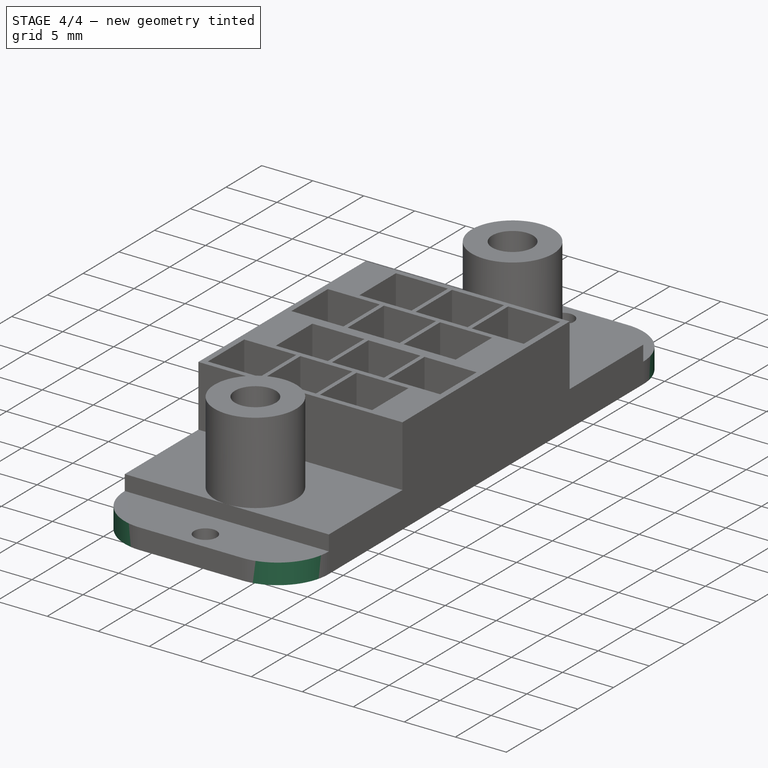
[diagram: stage 4 of 4 — iso view after this stage's code; geometry added in this stage tinted green]
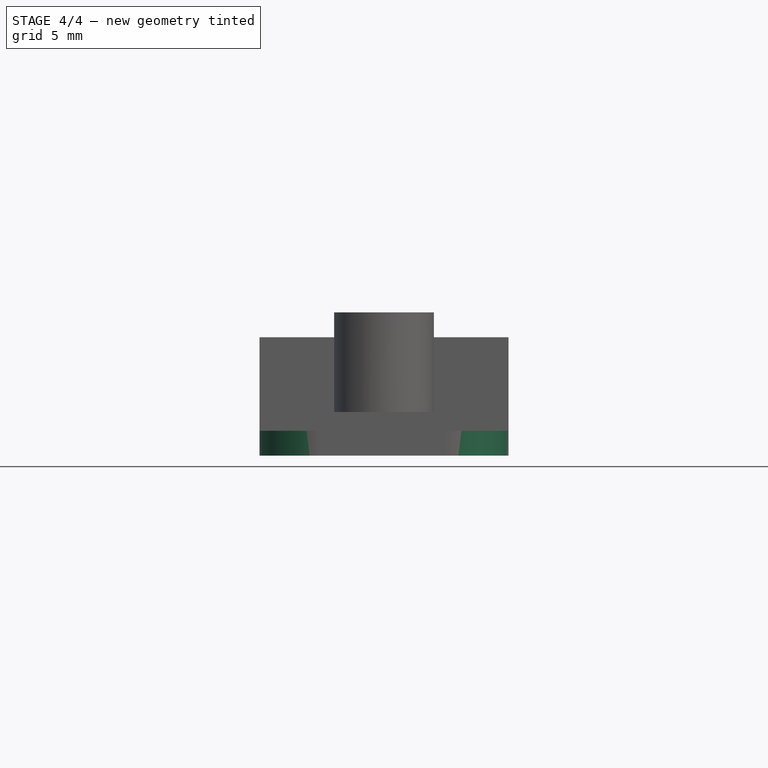
[diagram: stage 4 of 4 — front view after this stage's code; geometry added in this stage tinted green]
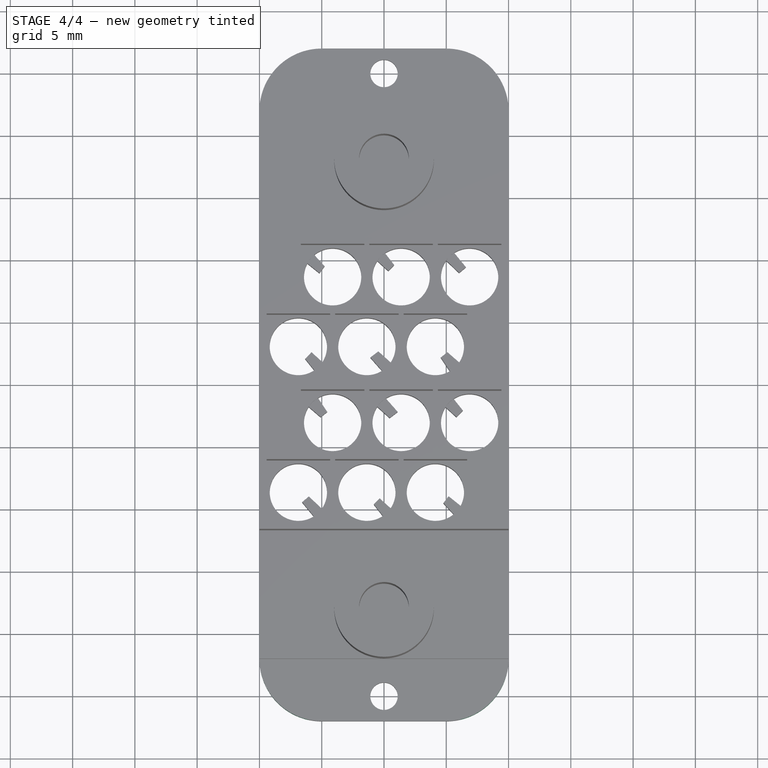
[diagram: stage 4 of 4 — top view after this stage's code; geometry added in this stage tinted green]
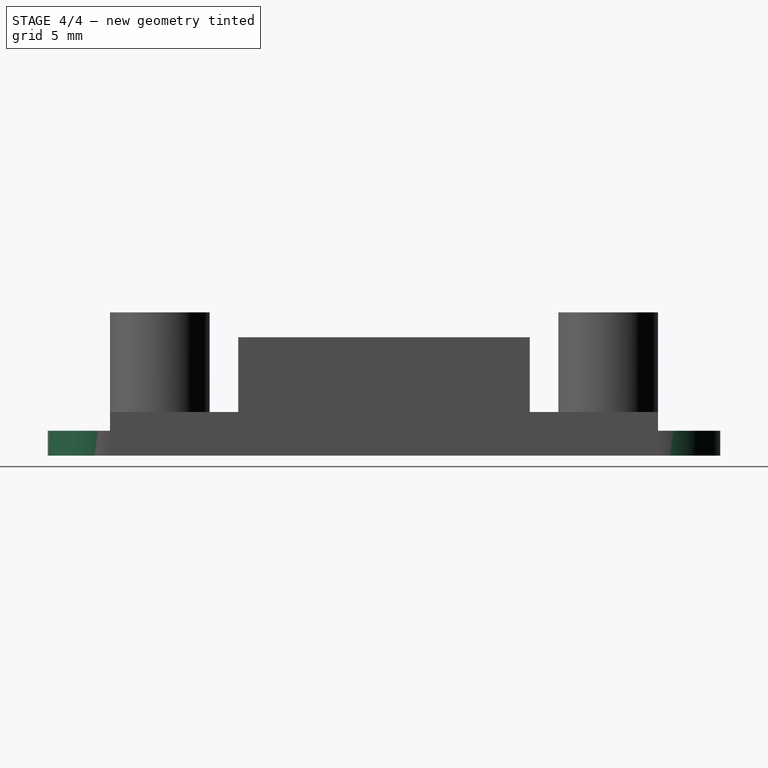
[diagram: stage 4 of 4 — right view after this stage's code; geometry added in this stage tinted green]
FEATURE [Part::MultiFuse] Fusion
  Shapes = -> [Pad003,Pad,Pad001,Pad002]
FEATURE [Part::MultiFuse] Fusion002
  Shapes = -> [Fusion,Fusion001]
FEATURE [PartDesign::Fillet] Fillet
  Base = -> Fusion002 [Edge19,Edge18,Edge55,Edge92]
  Radius = 5
FEATURE [Part::Cut] Cut
  Base = -> Fillet
  Tool = -> Pad013
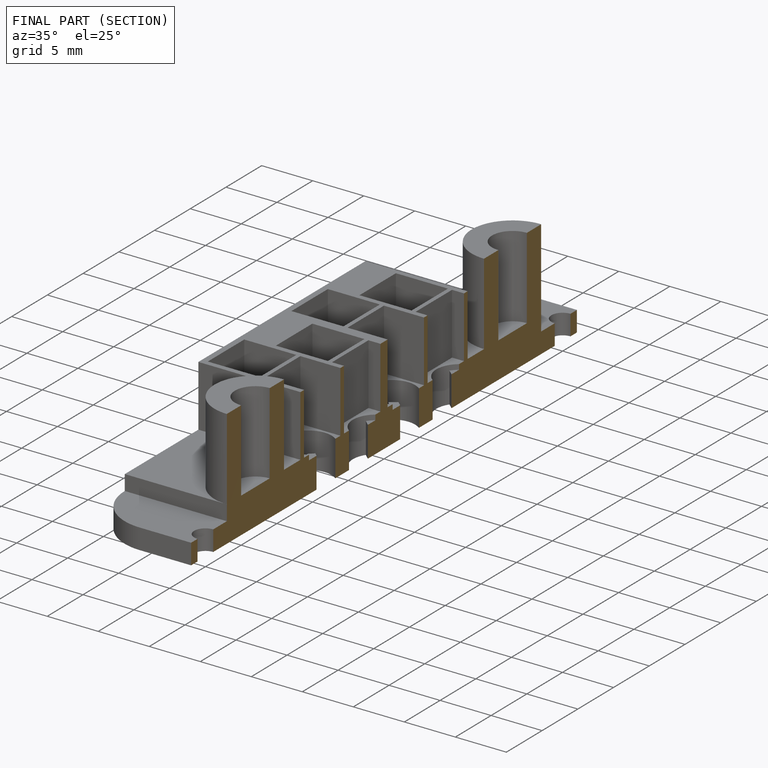
[diagram: finished part — half-section view (interior)]
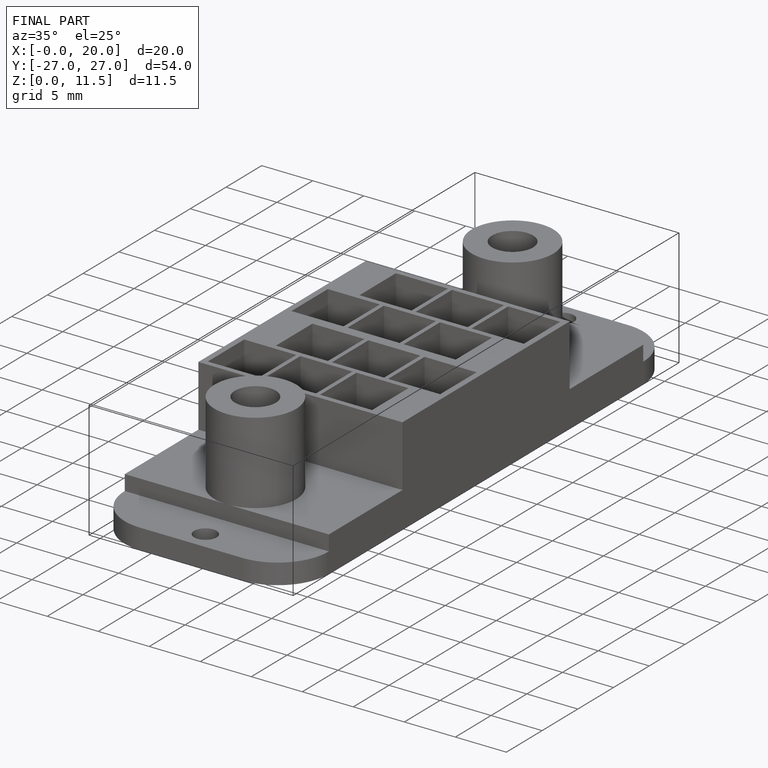
[diagram: finished part — iso view with bounding-box wireframe]
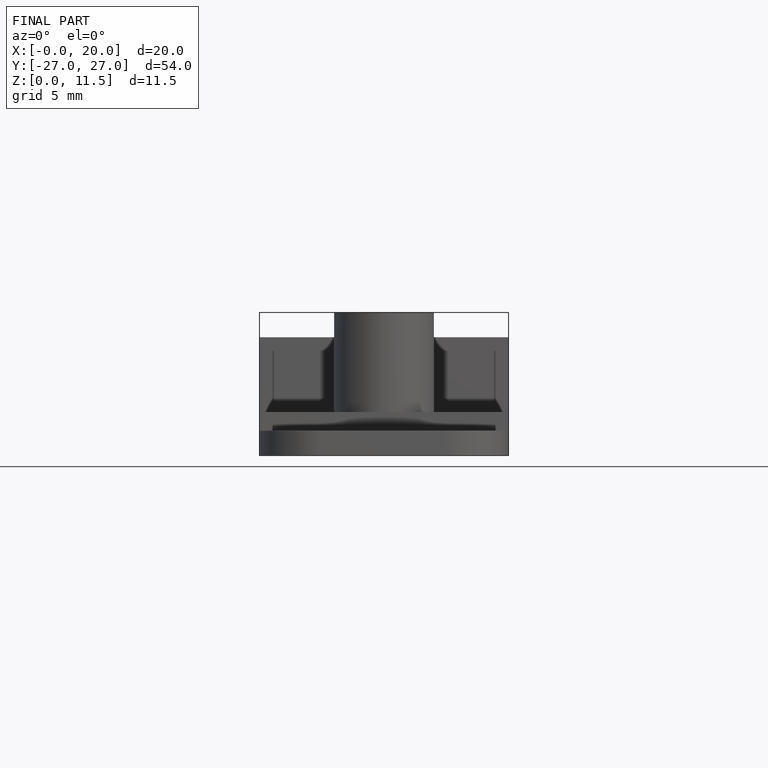
[diagram: finished part — front view with bounding-box wireframe]
